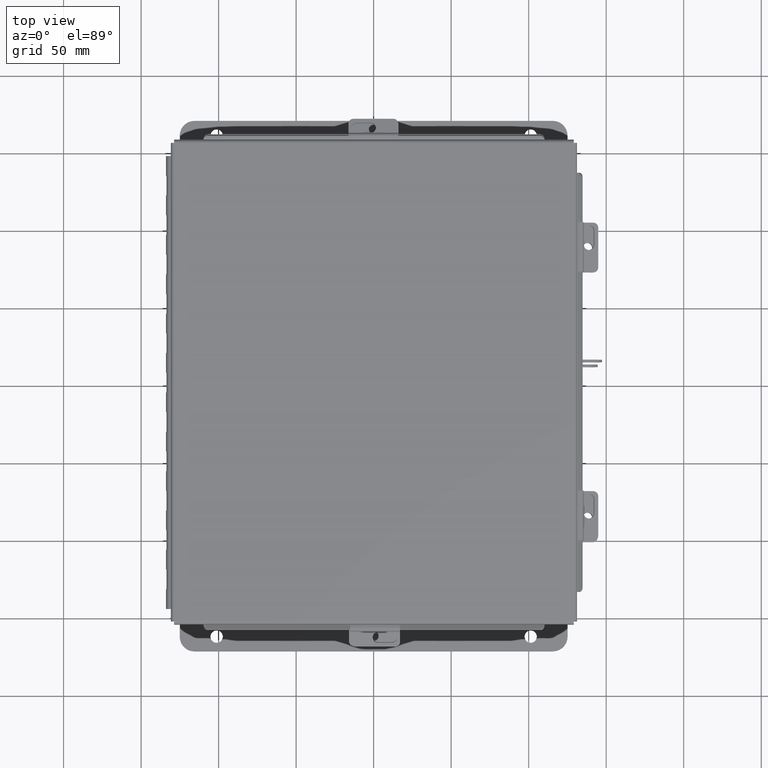
[diagram: clean part render]
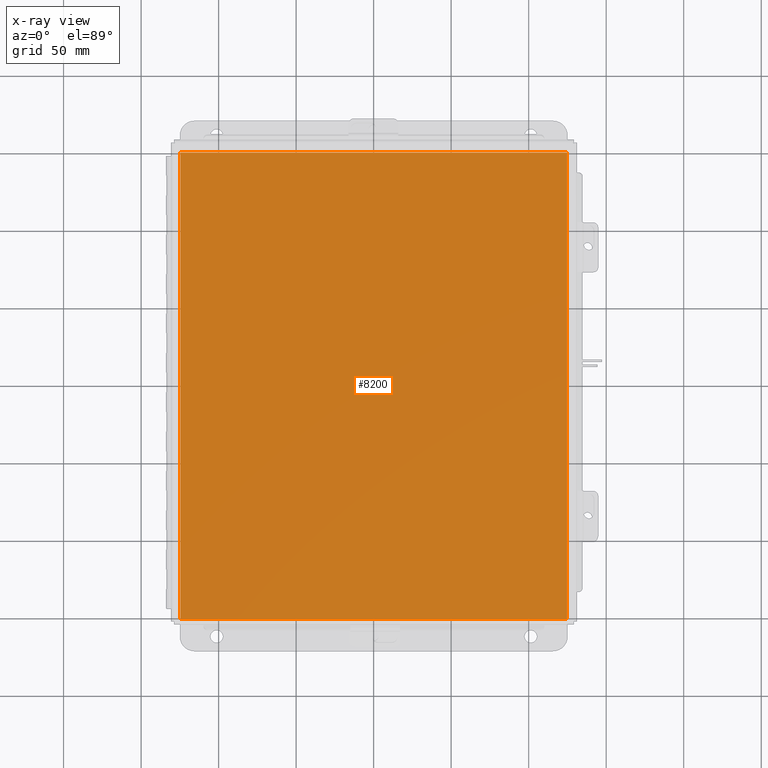
[diagram: x-ray — body ghosted, one internal face saturated and labeled with its STEP entity id]
A machine part, top view, then the same camera in x-ray: the body is ghosted and one INTERNAL B-rep face — a face not visible from any outside direction — is saturated and labeled: STEP entity #8200.
In plain terms, the highlighted planar face has unit normal (0, 0, -1).
Its self-contained STEP definition (entity closure, byte-faithful):
#11 = CARTESIAN_POINT ( 'NONE',  ( -4.912300000000000100, 5.925300000000000000, 4.268512490100411300E-017 ) ) ;
#234 = EDGE_CURVE ( 'NONE', #5260, #6435, #3298, .T. ) ;
#447 = LINE ( 'NONE', #1196, #3701 ) ;
#941 = DIRECTION ( 'NONE',  ( -1.000000000000000000, -0.0000000000000000000, -0.0000000000000000000 ) ) ;
#1190 = DIRECTION ( 'NONE',  ( 1.000000000000000000, 0.0000000000000000000, 0.0000000000000000000 ) ) ;
#1196 = CARTESIAN_POINT ( 'NONE',  ( 4.912300000000000100, 5.925300000000000000, 4.268512490100411300E-017 ) ) ;
#1358 = ORIENTED_EDGE ( 'NONE', *, *, #11754, .F. ) ;
#1592 = VERTEX_POINT ( 'NONE', #10106 ) ;
#1715 = CARTESIAN_POINT ( 'NONE',  ( -5.000000000000000000, -5.925300000000000000, 0.0000000000000000000 ) ) ;
#1961 = EDGE_LOOP ( 'NONE', ( #1358, #17469, #12071, #14374 ) ) ;
#3298 = LINE ( 'NONE', #1715, #10081 ) ;
#3369 = CARTESIAN_POINT ( 'NONE',  ( -5.000000000000000000, 5.925300000000000000, 0.0000000000000000000 ) ) ;
#3701 = VECTOR ( 'NONE', #13469, 39.37007874015748100 ) ;
#4453 = PLANE ( 'NONE',  #8410 ) ;
#5253 = VECTOR ( 'NONE', #13320, 39.37007874015748100 ) ;
#5260 = VERTEX_POINT ( 'NONE', #10963 ) ;
#5462 = EDGE_CURVE ( 'NONE', #1592, #12741, #7983, .T. ) ;
#6435 = VERTEX_POINT ( 'NONE', #6898 ) ;
#6898 = CARTESIAN_POINT ( 'NONE',  ( 4.912300000000000100, -5.925300000000000000, 4.268512490100411300E-017 ) ) ;
#7322 = CARTESIAN_POINT ( 'NONE',  ( 0.0000000000000000000, 0.0000000000000000000, 0.0000000000000000000 ) ) ;
#7983 = LINE ( 'NONE', #3369, #15264 ) ;
#8200 = ADVANCED_FACE ( 'NONE', ( #16352 ), #4453, .F. ) ;
#8410 = AXIS2_PLACEMENT_3D ( 'NONE', #7322, #13915, #11450 ) ;
#8505 = EDGE_CURVE ( 'NONE', #5260, #12741, #8838, .T. ) ;
#8838 = LINE ( 'NONE', #11962, #5253 ) ;
#10081 = VECTOR ( 'NONE', #1190, 39.37007874015748100 ) ;
#10106 = CARTESIAN_POINT ( 'NONE',  ( 4.912300000000000100, 5.925299999999997300, 4.268512490100411300E-017 ) ) ;
#10963 = CARTESIAN_POINT ( 'NONE',  ( -4.912300000000000100, -5.925299999999997300, 4.268512490100411300E-017 ) ) ;
#11450 = DIRECTION ( 'NONE',  ( -1.000000000000000000, 0.0000000000000000000, -0.0000000000000000000 ) ) ;
#11754 = EDGE_CURVE ( 'NONE', #1592, #6435, #447, .T. ) ;
#11962 = CARTESIAN_POINT ( 'NONE',  ( -4.912300000000000100, -5.925300000000000000, 4.268512490100411300E-017 ) ) ;
#12071 = ORIENTED_EDGE ( 'NONE', *, *, #8505, .F. ) ;
#12741 = VERTEX_POINT ( 'NONE', #11 ) ;
#13320 = DIRECTION ( 'NONE',  ( -0.0000000000000000000, 1.000000000000000000, -0.0000000000000000000 ) ) ;
#13469 = DIRECTION ( 'NONE',  ( -0.0000000000000000000, -1.000000000000000000, -0.0000000000000000000 ) ) ;
#13915 = DIRECTION ( 'NONE',  ( 0.0000000000000000000, 0.0000000000000000000, -1.000000000000000000 ) ) ;
#14374 = ORIENTED_EDGE ( 'NONE', *, *, #234, .T. ) ;
#15264 = VECTOR ( 'NONE', #941, 39.37007874015748100 ) ;
#16352 = FACE_OUTER_BOUND ( 'NONE', #1961, .T. ) ;
#17469 = ORIENTED_EDGE ( 'NONE', *, *, #5462, .T. ) ;